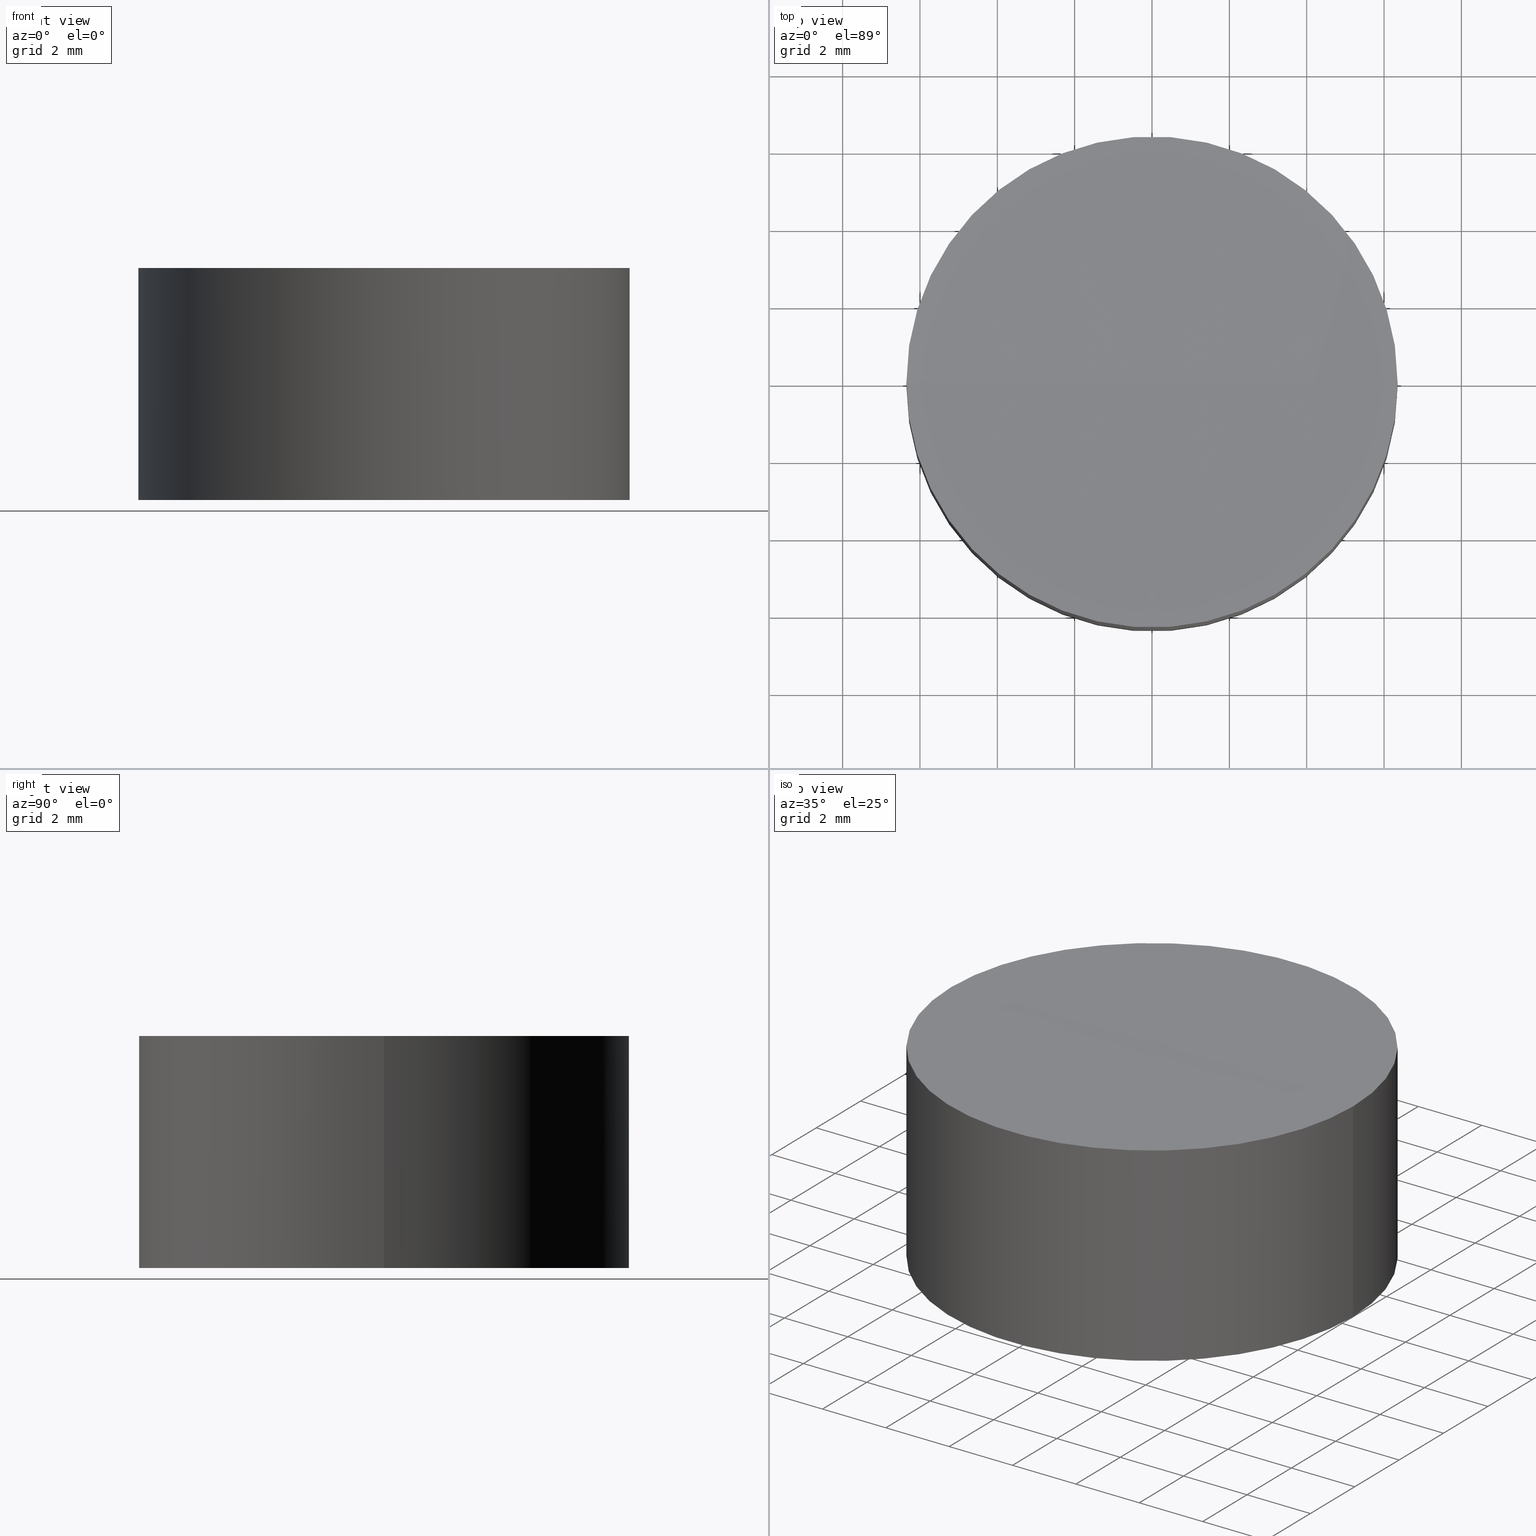
[diagram: canonical four-view strip — front | top / right | iso, engineering-drawing reading convention]
A machine part, canonical four-view strip (front | top / right | iso — engineering-drawing reading convention). The complete STEP part file that produces these views, byte-faithful:
ISO-10303-21;
HEADER;
FILE_DESCRIPTION (( 'STEP AP203' ),
    '1' );
FILE_NAME ('010-0109T6_N-BK7_PCV_window.STEP',
    '2021-02-25T09:23:58',
    ( '' ),
    ( '' ),
    'SwSTEP 2.0',
    'SolidWorks 2019',
    '' );
FILE_SCHEMA (( 'CONFIG_CONTROL_DESIGN' ));
ENDSEC;

DATA;
#1 = CIRCLE ( 'NONE', #15, 6.349999999999999645 ) ;
#2 = CARTESIAN_POINT ( 'NONE',  ( 5.030698080332740574E-14, 0.000000000000000000, 405.9495936990060159 ) ) ;
#3 = CC_DESIGN_SECURITY_CLASSIFICATION ( #145, ( #187 ) ) ;
#4 = DATE_AND_TIME ( #51, #164 ) ;
#5 = AXIS2_PLACEMENT_3D ( 'NONE', #9, #115, #72 ) ;
#6 = COORDINATED_UNIVERSAL_TIME_OFFSET ( 2, 0, .AHEAD. ) ;
#7 = EDGE_CURVE ( 'NONE', #78, #55, #151, .T. ) ;
#8 = CARTESIAN_POINT ( 'NONE',  ( 0.000000000000000000, 0.000000000000000000, 6.000000000000000000 ) ) ;
#9 = CARTESIAN_POINT ( 'NONE',  ( 0.000000000000000000, 0.000000000000000000, 0.000000000000000000 ) ) ;
#10 = DIRECTION ( 'NONE',  ( 0.000000000000000000, -1.000000000000000000, -0.000000000000000000 ) ) ;
#11 = EDGE_LOOP ( 'NONE', ( #59, #108, #105, #178 ) ) ;
#12 = EDGE_CURVE ( 'NONE', #78, #147, #63, .T. ) ;
#13 = LOCAL_TIME ( 11, 23, 58.00000000000000000, #6 ) ;
#14 = CARTESIAN_POINT ( 'NONE',  ( 0.000000000000000000, 0.000000000000000000, 0.000000000000000000 ) ) ;
#15 = AXIS2_PLACEMENT_3D ( 'NONE', #14, #138, #172 ) ;
#16 = ORIENTED_EDGE ( 'NONE', *, *, #190, .F. ) ;
#17 = APPLICATION_PROTOCOL_DEFINITION ( 'international standard', 'config_control_design', 1994, #198 ) ;
#18 = EDGE_LOOP ( 'NONE', ( #140, #116, #110 ) ) ;
#19 = PERSON_AND_ORGANIZATION ( #153, #137 ) ;
#20 = VECTOR ( 'NONE', #68, 1000.000000000000000 ) ;
#21 = DATE_AND_TIME ( #144, #13 ) ;
#22 = DATE_TIME_ROLE ( 'classification_date' ) ;
#23 = PLANE ( 'NONE',  #104 ) ;
#24 = DIRECTION ( 'NONE',  ( 0.000000000000000000, 0.000000000000000000, 1.000000000000000000 ) ) ;
#25 = CARTESIAN_POINT ( 'NONE',  ( 6.349999999999999645, 7.776507174585692163E-16, 6.000000000000000000 ) ) ;
#26 = APPROVAL_PERSON_ORGANIZATION ( #19, #112, #65 ) ;
#27 = ADVANCED_FACE ( 'NONE', ( #168 ), #113, .T. ) ;
#28 = DIRECTION ( 'NONE',  ( -0.000000000000000000, -0.000000000000000000, -1.000000000000000000 ) ) ;
#29 = AXIS2_PLACEMENT_3D ( 'NONE', #8, #89, #67 ) ;
#30 = EDGE_CURVE ( 'NONE', #147, #183, #31, .T. ) ;
#31 = LINE ( 'NONE', #83, #48 ) ;
#32 =( GEOMETRIC_REPRESENTATION_CONTEXT ( 3 ) GLOBAL_UNCERTAINTY_ASSIGNED_CONTEXT ( ( #136 ) ) GLOBAL_UNIT_ASSIGNED_CONTEXT ( ( #94, #49, #77 ) ) REPRESENTATION_CONTEXT ( 'NONE', 'WORKASPACE' ) );
#33 = APPROVAL_ROLE ( '' ) ;
#34 = CARTESIAN_POINT ( 'NONE',  ( -6.349999999999999645, 0.000000000000000000, 0.000000000000000000 ) ) ;
#35 = APPROVAL_ROLE ( '' ) ;
#36 = ADVANCED_FACE ( 'NONE', ( #128 ), #23, .F. ) ;
#37 = APPROVAL_STATUS ( 'not_yet_approved' ) ;
#38 = PRODUCT_RELATED_PRODUCT_CATEGORY ( 'detail', '', ( #90 ) ) ;
#39 = DIRECTION ( 'NONE',  ( -0.000000000000000000, -0.000000000000000000, -1.000000000000000000 ) ) ;
#40 = FACE_OUTER_BOUND ( 'NONE', #84, .T. ) ;
#41 = APPLICATION_CONTEXT ( 'configuration controlled 3d designs of mechanical parts and assemblies' ) ;
#42 = DIRECTION ( 'NONE',  ( 1.000000000000000000, 0.000000000000000000, 0.000000000000000000 ) ) ;
#43 = FACE_OUTER_BOUND ( 'NONE', #18, .T. ) ;
#44 = ADVANCED_FACE ( 'NONE', ( #82 ), #114, .F. ) ;
#45 = AXIS2_PLACEMENT_3D ( 'NONE', #117, #39, #166 ) ;
#46 = PERSON_AND_ORGANIZATION ( #153, #137 ) ;
#47 = ADVANCED_FACE ( 'NONE', ( #40 ), #194, .T. ) ;
#48 = VECTOR ( 'NONE', #101, 1000.000000000000000 ) ;
#49 =( NAMED_UNIT ( * ) PLANE_ANGLE_UNIT ( ) SI_UNIT ( $, .RADIAN. ) );
#50 = ADVANCED_FACE ( 'NONE', ( #43 ), #193, .F. ) ;
#51 = CALENDAR_DATE ( 2021, 25, 2 ) ;
#52 = ORIENTED_EDGE ( 'NONE', *, *, #7, .T. ) ;
#53 = CC_DESIGN_APPROVAL ( #112, ( #145 ) ) ;
#54 = DIRECTION ( 'NONE',  ( 1.000000000000000000, 0.000000000000000000, 0.000000000000000000 ) ) ;
#55 = VERTEX_POINT ( 'NONE', #167 ) ;
#56 = DIRECTION ( 'NONE',  ( 1.000000000000000000, 0.000000000000000000, 0.000000000000000000 ) ) ;
#57 = AXIS2_PLACEMENT_3D ( 'NONE', #163, #171, #201 ) ;
#58 = CARTESIAN_POINT ( 'NONE',  ( 5.030698080332740574E-14, 0.000000000000000000, 6.000000000000005329 ) ) ;
#59 = ORIENTED_EDGE ( 'NONE', *, *, #7, .F. ) ;
#60 = PERSON_AND_ORGANIZATION ( #153, #137 ) ;
#61 = DESIGN_CONTEXT ( 'detailed design', #198, 'design' ) ;
#62 = APPROVAL_DATE_TIME ( #4, #124 ) ;
#63 = CIRCLE ( 'NONE', #191, 6.350000000003989342 ) ;
#64 = APPLICATION_PROTOCOL_DEFINITION ( 'international standard', 'config_control_design', 1994, #41 ) ;
#65 = APPROVAL_ROLE ( '' ) ;
#66 = CIRCLE ( 'NONE', #184, 399.9999999999999432 ) ;
#67 = DIRECTION ( 'NONE',  ( -1.000000000000000000, 0.000000000000000000, 0.000000000000000000 ) ) ;
#68 = DIRECTION ( 'NONE',  ( -0.000000000000000000, -0.000000000000000000, -1.000000000000000000 ) ) ;
#69 = DIRECTION ( 'NONE',  ( 0.000000000000000000, 1.000000000000000000, -0.000000000000000000 ) ) ;
#70 = LOCAL_TIME ( 11, 23, 58.00000000000000000, #91 ) ;
#71 = EDGE_CURVE ( 'NONE', #78, #95, #66, .T. ) ;
#72 = DIRECTION ( 'NONE',  ( 1.000000000000000000, 0.000000000000000000, 0.000000000000000000 ) ) ;
#73 = APPROVAL_STATUS ( 'not_yet_approved' ) ;
#74 = CALENDAR_DATE ( 2021, 25, 2 ) ;
#75 = PERSON_AND_ORGANIZATION_ROLE ( 'design_supplier' ) ;
#76 = EDGE_CURVE ( 'NONE', #55, #183, #88, .T. ) ;
#77 =( NAMED_UNIT ( * ) SI_UNIT ( $, .STERADIAN. ) SOLID_ANGLE_UNIT ( ) );
#78 = VERTEX_POINT ( 'NONE', #133 ) ;
#79 = PERSON_AND_ORGANIZATION_ROLE ( 'design_owner' ) ;
#80 = ORIENTED_EDGE ( 'NONE', *, *, #12, .F. ) ;
#81 = APPROVAL_DATE_TIME ( #21, #112 ) ;
#82 = FACE_OUTER_BOUND ( 'NONE', #148, .T. ) ;
#83 = CARTESIAN_POINT ( 'NONE',  ( -6.349999999999999645, 0.000000000000000000, 6.000000000000000000 ) ) ;
#84 = EDGE_LOOP ( 'NONE', ( #197, #52, #175, #141 ) ) ;
#85 = CC_DESIGN_DATE_AND_TIME_ASSIGNMENT ( #161, #109, ( #149 ) ) ;
#86 = DIRECTION ( 'NONE',  ( 1.000000000000000000, 0.000000000000000000, 0.000000000000000000 ) ) ;
#87 = CC_DESIGN_APPROVAL ( #98, ( #187 ) ) ;
#88 = CIRCLE ( 'NONE', #5, 6.349999999999999645 ) ;
#89 = DIRECTION ( 'NONE',  ( -0.000000000000000000, -0.000000000000000000, -1.000000000000000000 ) ) ;
#90 = PRODUCT ( '010-0109T6_N-BK7_PCV_window', '010-0109T6_N-BK7_PCV_window', '', ( #176 ) ) ;
#91 = COORDINATED_UNIVERSAL_TIME_OFFSET ( 2, 0, .AHEAD. ) ;
#92 = PRODUCT_DEFINITION_SHAPE ( 'NONE', 'NONE',  #149 ) ;
#93 = PERSON_AND_ORGANIZATION ( #153, #137 ) ;
#94 =( LENGTH_UNIT ( ) NAMED_UNIT ( * ) SI_UNIT ( .MILLI., .METRE. ) );
#95 = VERTEX_POINT ( 'NONE', #132 ) ;
#96 = DATE_AND_TIME ( #135, #111 ) ;
#97 = COORDINATED_UNIVERSAL_TIME_OFFSET ( 2, 0, .AHEAD. ) ;
#98 = APPROVAL ( #73, 'UNSPECIFIED' ) ;
#99 = ORIENTED_EDGE ( 'NONE', *, *, #185, .F. ) ;
#100 = AXIS2_PLACEMENT_3D ( 'NONE', #180, #102, #56 ) ;
#101 = DIRECTION ( 'NONE',  ( -0.000000000000000000, -0.000000000000000000, -1.000000000000000000 ) ) ;
#102 = DIRECTION ( 'NONE',  ( 0.000000000000000000, -1.000000000000000000, -0.000000000000000000 ) ) ;
#103 = DIRECTION ( 'NONE',  ( 1.000000000000000000, 0.000000000000000000, -0.000000000000000000 ) ) ;
#104 = AXIS2_PLACEMENT_3D ( 'NONE', #150, #154, #103 ) ;
#105 = ORIENTED_EDGE ( 'NONE', *, *, #30, .T. ) ;
#106 = CLOSED_SHELL ( 'NONE', ( #50, #47, #27, #36, #44 ) ) ;
#107 = PERSON_AND_ORGANIZATION_ROLE ( 'classification_officer' ) ;
#108 = ORIENTED_EDGE ( 'NONE', *, *, #12, .T. ) ;
#109 = DATE_TIME_ROLE ( 'creation_date' ) ;
#110 = ORIENTED_EDGE ( 'NONE', *, *, #71, .F. ) ;
#111 = LOCAL_TIME ( 11, 23, 58.00000000000000000, #189 ) ;
#112 = APPROVAL ( #127, 'UNSPECIFIED' ) ;
#113 = CYLINDRICAL_SURFACE ( 'NONE', #45, 6.349999999999999645 ) ;
#114 = SPHERICAL_SURFACE ( 'NONE', #177, 400.0000000000000000 ) ;
#115 = DIRECTION ( 'NONE',  ( 0.000000000000000000, 0.000000000000000000, 1.000000000000000000 ) ) ;
#116 = ORIENTED_EDGE ( 'NONE', *, *, #190, .T. ) ;
#117 = CARTESIAN_POINT ( 'NONE',  ( 0.000000000000000000, 0.000000000000000000, 6.000000000000000000 ) ) ;
#118 = AXIS2_PLACEMENT_3D ( 'NONE', #58, #28, #86 ) ;
#119 = LOCAL_TIME ( 11, 23, 58.00000000000000000, #155 ) ;
#120 = SECURITY_CLASSIFICATION_LEVEL ( 'unclassified' ) ;
#121 = APPROVAL_PERSON_ORGANIZATION ( #125, #98, #35 ) ;
#122 = PERSON_AND_ORGANIZATION ( #153, #137 ) ;
#123 = DATE_AND_TIME ( #74, #119 ) ;
#124 = APPROVAL ( #37, 'UNSPECIFIED' ) ;
#125 = PERSON_AND_ORGANIZATION ( #153, #137 ) ;
#126 = AXIS2_PLACEMENT_3D ( 'NONE', #2, #158, #186 ) ;
#127 = APPROVAL_STATUS ( 'not_yet_approved' ) ;
#128 = FACE_OUTER_BOUND ( 'NONE', #196, .T. ) ;
#129 = CARTESIAN_POINT ( 'NONE',  ( 5.030698080332740574E-14, 0.000000000000000000, 405.9495936990060159 ) ) ;
#130 = DIRECTION ( 'NONE',  ( -0.000000000000000000, -0.000000000000000000, -1.000000000000000000 ) ) ;
#131 = CC_DESIGN_PERSON_AND_ORGANIZATION_ASSIGNMENT ( #60, #75, ( #187 ) ) ;
#132 = CARTESIAN_POINT ( 'NONE',  ( 7.479991678627446061E-14, 0.000000000000000000, 5.949593699005994551 ) ) ;
#133 = CARTESIAN_POINT ( 'NONE',  ( 6.350000000004039080, 7.776507174590639307E-16, 6.000000000000005329 ) ) ;
#134 = CC_DESIGN_PERSON_AND_ORGANIZATION_ASSIGNMENT ( #122, #188, ( #187 ) ) ;
#135 = CALENDAR_DATE ( 2021, 25, 2 ) ;
#136 = UNCERTAINTY_MEASURE_WITH_UNIT (LENGTH_MEASURE( 1.000000000000000082E-05 ), #94, 'distance_accuracy_value', 'NONE');
#137 = ORGANIZATION ( 'UNSPECIFIED', 'UNSPECIFIED', '' ) ;
#138 = DIRECTION ( 'NONE',  ( 0.000000000000000000, 0.000000000000000000, 1.000000000000000000 ) ) ;
#139 = PERSON_AND_ORGANIZATION ( #153, #137 ) ;
#140 = ORIENTED_EDGE ( 'NONE', *, *, #169, .F. ) ;
#141 = ORIENTED_EDGE ( 'NONE', *, *, #30, .F. ) ;
#142 = APPROVAL_PERSON_ORGANIZATION ( #139, #124, #33 ) ;
#143 = CC_DESIGN_PERSON_AND_ORGANIZATION_ASSIGNMENT ( #93, #156, ( #149 ) ) ;
#144 = CALENDAR_DATE ( 2021, 25, 2 ) ;
#145 = SECURITY_CLASSIFICATION ( '', '', #120 ) ;
#146 = SHAPE_DEFINITION_REPRESENTATION ( #92, #195 ) ;
#147 = VERTEX_POINT ( 'NONE', #181 ) ;
#148 = EDGE_LOOP ( 'NONE', ( #16, #80, #162 ) ) ;
#149 = PRODUCT_DEFINITION ( 'UNKNOWN', '', #187, #61 ) ;
#150 = CARTESIAN_POINT ( 'NONE',  ( 0.000000000000000000, 0.000000000000000000, 0.000000000000000000 ) ) ;
#151 = LINE ( 'NONE', #25, #20 ) ;
#152 = CIRCLE ( 'NONE', #126, 400.0000000000000000 ) ;
#153 = PERSON ( 'UNSPECIFIED', 'UNSPECIFIED', 'UNSPECIFIED', ('UNSPECIFIED'), ('UNSPECIFIED'), ('UNSPECIFIED') ) ;
#154 = DIRECTION ( 'NONE',  ( 0.000000000000000000, 0.000000000000000000, 1.000000000000000000 ) ) ;
#155 = COORDINATED_UNIVERSAL_TIME_OFFSET ( 2, 0, .AHEAD. ) ;
#156 = PERSON_AND_ORGANIZATION_ROLE ( 'creator' ) ;
#157 = CIRCLE ( 'NONE', #118, 6.350000000003989342 ) ;
#158 = DIRECTION ( 'NONE',  ( 1.224646799147353207E-16, -1.000000000000000000, 0.000000000000000000 ) ) ;
#159 = MANIFOLD_SOLID_BREP ( 'Cut-Revolve1', #106 ) ;
#160 = ORIENTED_EDGE ( 'NONE', *, *, #76, .F. ) ;
#161 = DATE_AND_TIME ( #174, #70 ) ;
#162 = ORIENTED_EDGE ( 'NONE', *, *, #71, .T. ) ;
#163 = CARTESIAN_POINT ( 'NONE',  ( 0.000000000000000000, 0.000000000000000000, 0.000000000000000000 ) ) ;
#164 = LOCAL_TIME ( 11, 23, 58.00000000000000000, #97 ) ;
#165 = CARTESIAN_POINT ( 'NONE',  ( 5.030698080332740574E-14, 0.000000000000000000, 6.000000000000005329 ) ) ;
#166 = DIRECTION ( 'NONE',  ( -1.000000000000000000, 0.000000000000000000, 0.000000000000000000 ) ) ;
#167 = CARTESIAN_POINT ( 'NONE',  ( 6.349999999999999645, 7.776507174585692163E-16, 0.000000000000000000 ) ) ;
#168 = FACE_OUTER_BOUND ( 'NONE', #11, .T. ) ;
#169 = EDGE_CURVE ( 'NONE', #147, #78, #157, .T. ) ;
#170 = CC_DESIGN_APPROVAL ( #124, ( #149 ) ) ;
#171 = DIRECTION ( 'NONE',  ( 0.000000000000000000, 0.000000000000000000, 1.000000000000000000 ) ) ;
#172 = DIRECTION ( 'NONE',  ( 1.000000000000000000, 0.000000000000000000, 0.000000000000000000 ) ) ;
#173 = PERSON_AND_ORGANIZATION ( #153, #137 ) ;
#174 = CALENDAR_DATE ( 2021, 25, 2 ) ;
#175 = ORIENTED_EDGE ( 'NONE', *, *, #76, .T. ) ;
#176 = MECHANICAL_CONTEXT ( 'NONE', #41, 'mechanical' ) ;
#177 = AXIS2_PLACEMENT_3D ( 'NONE', #192, #10, #54 ) ;
#178 = ORIENTED_EDGE ( 'NONE', *, *, #185, .T. ) ;
#179 = CC_DESIGN_DATE_AND_TIME_ASSIGNMENT ( #123, #22, ( #145 ) ) ;
#180 = CARTESIAN_POINT ( 'NONE',  ( 5.030698080332740574E-14, 0.000000000000000000, 405.9495936990060159 ) ) ;
#181 = CARTESIAN_POINT ( 'NONE',  ( -6.350000000003939604, 0.000000000000000000, 6.000000000000005329 ) ) ;
#182 = CC_DESIGN_PERSON_AND_ORGANIZATION_ASSIGNMENT ( #173, #79, ( #90 ) ) ;
#183 = VERTEX_POINT ( 'NONE', #34 ) ;
#184 = AXIS2_PLACEMENT_3D ( 'NONE', #129, #69, #24 ) ;
#185 = EDGE_CURVE ( 'NONE', #183, #55, #1, .T. ) ;
#186 = DIRECTION ( 'NONE',  ( 1.000000000000000000, 1.224646799147353207E-16, 0.000000000000000000 ) ) ;
#187 = PRODUCT_DEFINITION_FORMATION_WITH_SPECIFIED_SOURCE ( 'ANY', '', #90, .NOT_KNOWN. ) ;
#188 = PERSON_AND_ORGANIZATION_ROLE ( 'creator' ) ;
#189 = COORDINATED_UNIVERSAL_TIME_OFFSET ( 2, 0, .AHEAD. ) ;
#190 = EDGE_CURVE ( 'NONE', #147, #95, #152, .T. ) ;
#191 = AXIS2_PLACEMENT_3D ( 'NONE', #165, #130, #42 ) ;
#192 = CARTESIAN_POINT ( 'NONE',  ( 5.030698080332740574E-14, 0.000000000000000000, 405.9495936990060159 ) ) ;
#193 = SPHERICAL_SURFACE ( 'NONE', #100, 400.0000000000000000 ) ;
#194 = CYLINDRICAL_SURFACE ( 'NONE', #29, 6.349999999999999645 ) ;
#195 = ADVANCED_BREP_SHAPE_REPRESENTATION ( '010-0109T6_N-BK7_PCV_window', ( #159, #57 ), #32 ) ;
#196 = EDGE_LOOP ( 'NONE', ( #99, #160 ) ) ;
#197 = ORIENTED_EDGE ( 'NONE', *, *, #169, .T. ) ;
#198 = APPLICATION_CONTEXT ( 'configuration controlled 3d designs of mechanical parts and assemblies' ) ;
#199 = CC_DESIGN_PERSON_AND_ORGANIZATION_ASSIGNMENT ( #46, #107, ( #145 ) ) ;
#200 = APPROVAL_DATE_TIME ( #96, #98 ) ;
#201 = DIRECTION ( 'NONE',  ( 1.000000000000000000, 0.000000000000000000, 0.000000000000000000 ) ) ;
ENDSEC;
END-ISO-10303-21;
